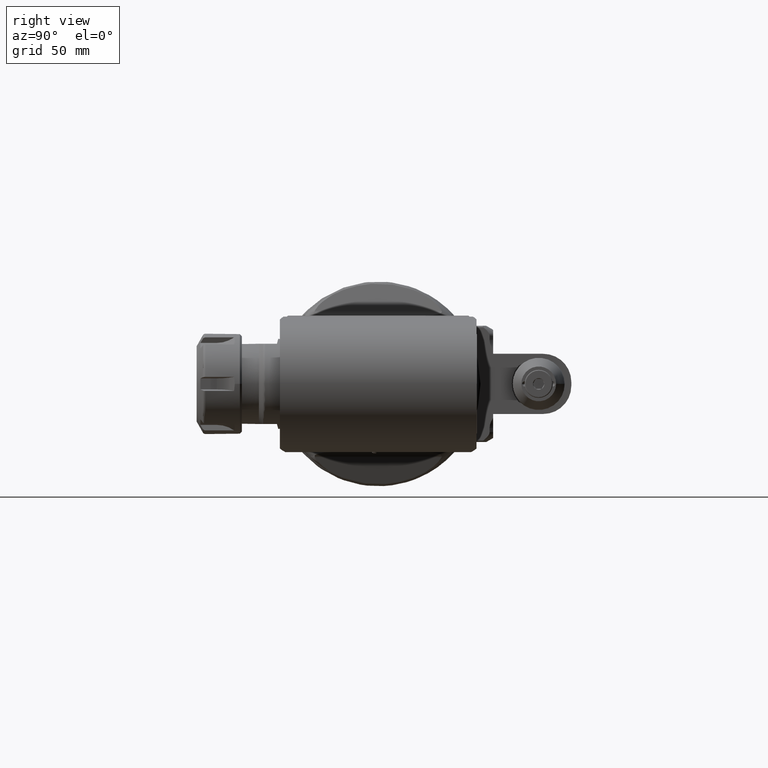
[diagram: clean part render]
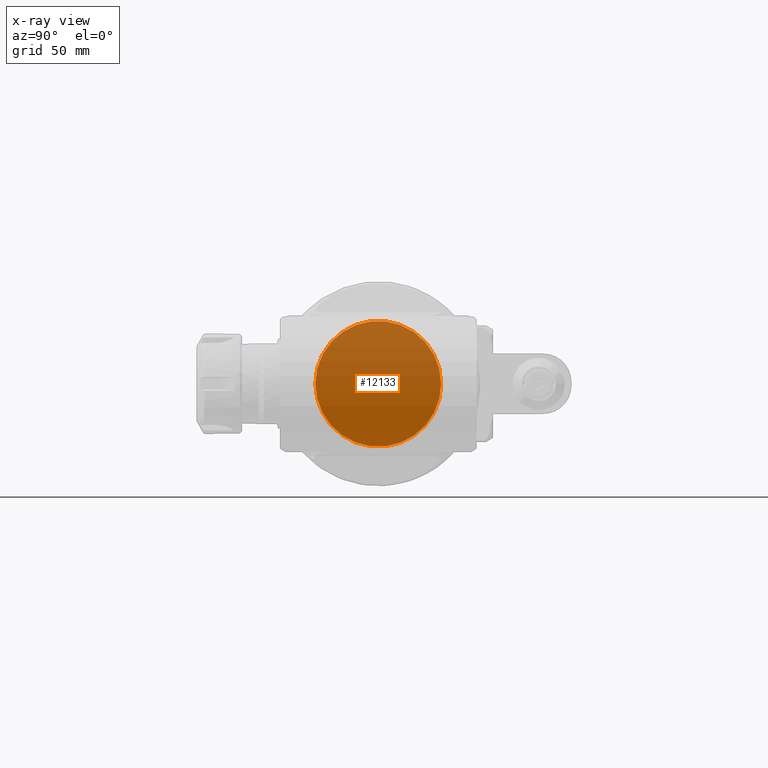
[diagram: x-ray — body ghosted, one internal face saturated and labeled with its STEP entity id]
A machine part, right view, then the same camera in x-ray: the body is ghosted and one INTERNAL B-rep face — a face not visible from any outside direction — is saturated and labeled: STEP entity #12133.
In plain terms, the highlighted planar face has unit normal (1, 0, 0).
Its self-contained STEP definition (entity closure, byte-faithful):
#3219=FACE_OUTER_BOUND('',#3941,.T.);
#3941=EDGE_LOOP('',(#10565));
#4467=CIRCLE('',#13176,31.35);
#5592=VERTEX_POINT('',#66021);
#7274=EDGE_CURVE('',#5592,#5592,#4467,.T.);
#10565=ORIENTED_EDGE('',*,*,#7274,.T.);
#11590=PLANE('',#13200);
#12133=ADVANCED_FACE('',(#3219),#11590,.T.);
#13176=AXIS2_PLACEMENT_3D('',#66023,#15779,#15780);
#13200=AXIS2_PLACEMENT_3D('',#66117,#15845,#15846);
#15779=DIRECTION('center_axis',(1.,0.,0.));
#15780=DIRECTION('ref_axis',(0.,1.,0.));
#15845=DIRECTION('center_axis',(1.,0.,0.));
#15846=DIRECTION('ref_axis',(0.,1.,0.));
#66021=CARTESIAN_POINT('',(-44.,31.35,0.));
#66023=CARTESIAN_POINT('Origin',(-44.,0.,0.));
#66117=CARTESIAN_POINT('Origin',(-44.,0.,0.));